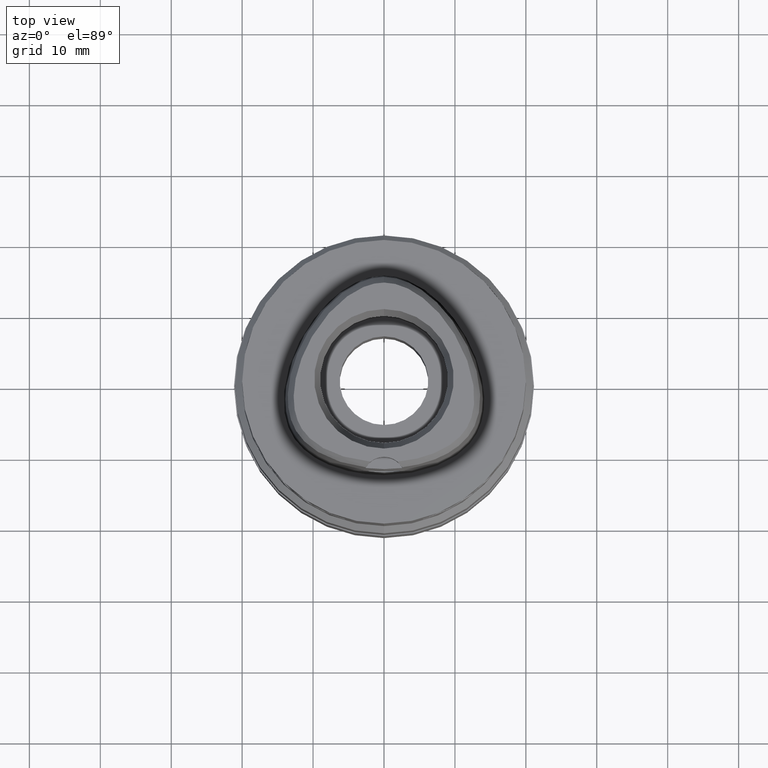
[diagram: clean part render]
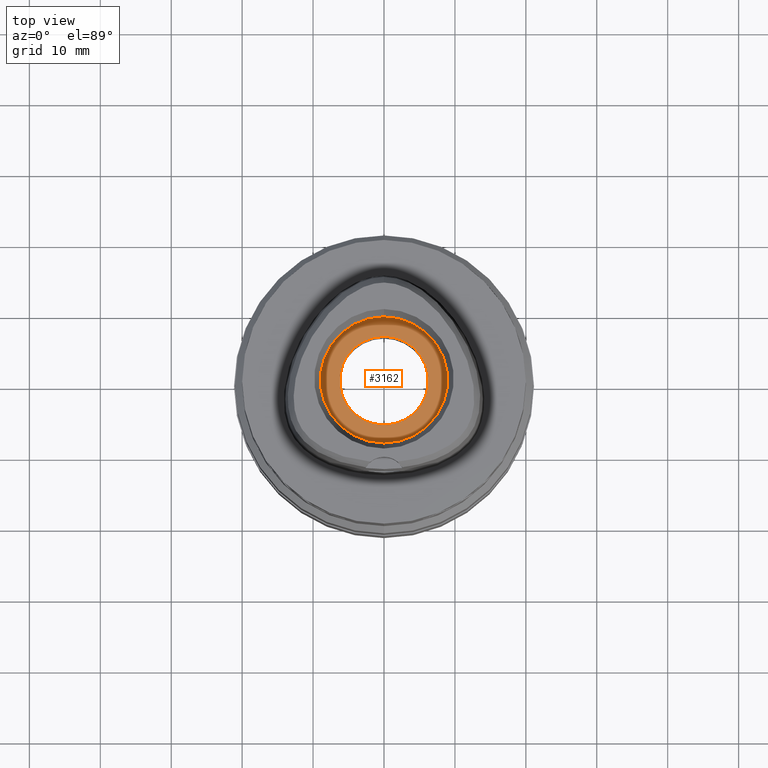
[diagram: same view with one face highlighted and labeled with its STEP entity id]
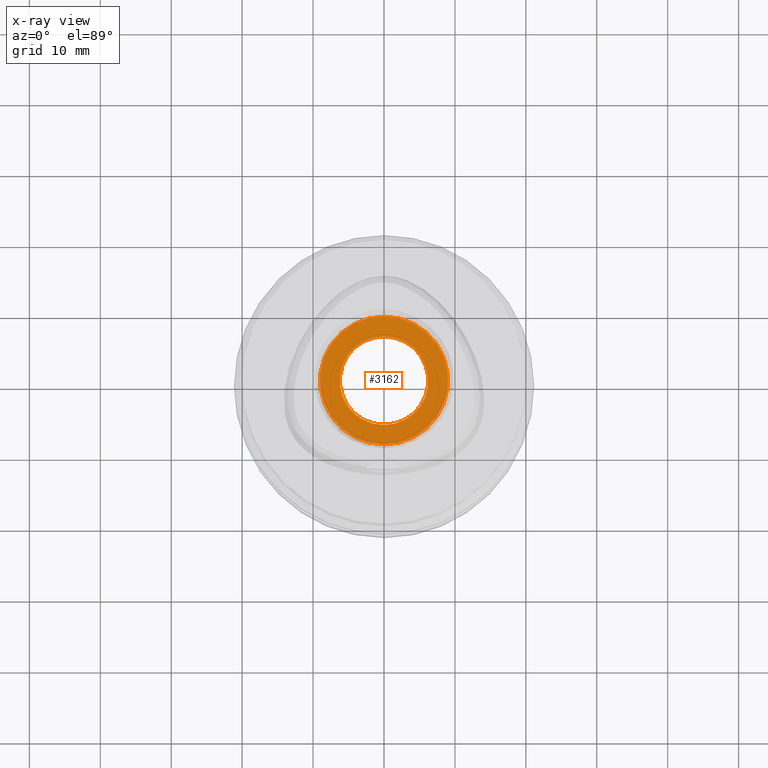
[diagram: x-ray of the same camera — body ghosted, the highlighted face saturated]
A machine part, top view. The second image highlights one B-rep face of the part: STEP entity #3162.
The next image is the same camera in x-ray: the body ghosted, the highlighted face saturated — about 1% of this face is hidden behind the body in this view.
In plain terms, the highlighted planar face has unit normal (0, 0, -1).
Its self-contained STEP definition (entity closure, byte-faithful):
#79 = EDGE_CURVE ( 'NONE', #3414, #828, #4436, .T. ) ;
#141 = EDGE_CURVE ( 'NONE', #2469, #2655, #2098, .T. ) ;
#341 = CARTESIAN_POINT ( 'NONE',  ( 0.0000000000000000000, 1.334865011070999814E-14, 9.000000000000000000 ) ) ;
#736 = CARTESIAN_POINT ( 'NONE',  ( 0.0000000000000000000, -9.000000000000000000, 9.000000000000000000 ) ) ;
#754 = DIRECTION ( 'NONE',  ( 0.0000000000000000000, 0.0000000000000000000, 1.000000000000000000 ) ) ;
#787 = CARTESIAN_POINT ( 'NONE',  ( 0.0000000000000000000, -6.250000000000000000, 9.000000000000000000 ) ) ;
#828 = VERTEX_POINT ( 'NONE', #787 ) ;
#1276 = EDGE_LOOP ( 'NONE', ( #2925, #4025 ) ) ;
#1566 = CARTESIAN_POINT ( 'NONE',  ( 0.0000000000000000000, 9.000000000000000000, 9.000000000000000000 ) ) ;
#1707 = DIRECTION ( 'NONE',  ( 0.0000000000000000000, -1.000000000000000000, 0.0000000000000000000 ) ) ;
#1772 = FACE_BOUND ( 'NONE', #4582, .T. ) ;
#1946 = AXIS2_PLACEMENT_3D ( 'NONE', #3345, #2254, #3061 ) ;
#2098 = CIRCLE ( 'NONE', #1946, 9.000000000000000000 ) ;
#2100 = CARTESIAN_POINT ( 'NONE',  ( 0.0000000000000000000, 1.533257792532000136E-14, 9.000000000000000000 ) ) ;
#2118 = FACE_OUTER_BOUND ( 'NONE', #1276, .T. ) ;
#2254 = DIRECTION ( 'NONE',  ( 0.0000000000000000000, 0.0000000000000000000, -1.000000000000000000 ) ) ;
#2293 = EDGE_CURVE ( 'NONE', #2655, #2469, #3919, .T. ) ;
#2338 = AXIS2_PLACEMENT_3D ( 'NONE', #341, #4272, #3458 ) ;
#2469 = VERTEX_POINT ( 'NONE', #1566 ) ;
#2655 = VERTEX_POINT ( 'NONE', #736 ) ;
#2781 = ORIENTED_EDGE ( 'NONE', *, *, #2952, .F. ) ;
#2861 = CARTESIAN_POINT ( 'NONE',  ( 0.0000000000000000000, 1.533257792532000136E-14, 9.000000000000000000 ) ) ;
#2925 = ORIENTED_EDGE ( 'NONE', *, *, #2293, .F. ) ;
#2932 = CARTESIAN_POINT ( 'NONE',  ( 0.0000000000000000000, 6.250000000000000000, 9.000000000000000000 ) ) ;
#2952 = EDGE_CURVE ( 'NONE', #828, #3414, #3246, .T. ) ;
#3013 = AXIS2_PLACEMENT_3D ( 'NONE', #2861, #4315, #3575 ) ;
#3061 = DIRECTION ( 'NONE',  ( 0.0000000000000000000, 1.000000000000000000, 0.0000000000000000000 ) ) ;
#3162 = ADVANCED_FACE ( 'NONE', ( #2118, #1772 ), #3533, .F. ) ;
#3246 = CIRCLE ( 'NONE', #4153, 6.250000000000000000 ) ;
#3345 = CARTESIAN_POINT ( 'NONE',  ( 0.0000000000000000000, 1.533257792532000136E-14, 9.000000000000000000 ) ) ;
#3414 = VERTEX_POINT ( 'NONE', #2932 ) ;
#3458 = DIRECTION ( 'NONE',  ( 0.0000000000000000000, -1.000000000000000000, 0.0000000000000000000 ) ) ;
#3533 = PLANE ( 'NONE',  #2338 ) ;
#3541 = DIRECTION ( 'NONE',  ( 0.0000000000000000000, 0.0000000000000000000, 1.000000000000000000 ) ) ;
#3575 = DIRECTION ( 'NONE',  ( 0.0000000000000000000, -1.000000000000000000, 0.0000000000000000000 ) ) ;
#3919 = CIRCLE ( 'NONE', #3013, 9.000000000000000000 ) ;
#3983 = CARTESIAN_POINT ( 'NONE',  ( 0.0000000000000000000, 1.533257792532000136E-14, 9.000000000000000000 ) ) ;
#4025 = ORIENTED_EDGE ( 'NONE', *, *, #141, .F. ) ;
#4083 = ORIENTED_EDGE ( 'NONE', *, *, #79, .F. ) ;
#4153 = AXIS2_PLACEMENT_3D ( 'NONE', #2100, #3541, #1707 ) ;
#4172 = DIRECTION ( 'NONE',  ( 0.0000000000000000000, 1.000000000000000000, 0.0000000000000000000 ) ) ;
#4272 = DIRECTION ( 'NONE',  ( 0.0000000000000000000, 0.0000000000000000000, -1.000000000000000000 ) ) ;
#4315 = DIRECTION ( 'NONE',  ( 0.0000000000000000000, 0.0000000000000000000, -1.000000000000000000 ) ) ;
#4369 = AXIS2_PLACEMENT_3D ( 'NONE', #3983, #754, #4172 ) ;
#4436 = CIRCLE ( 'NONE', #4369, 6.250000000000000000 ) ;
#4582 = EDGE_LOOP ( 'NONE', ( #2781, #4083 ) ) ;